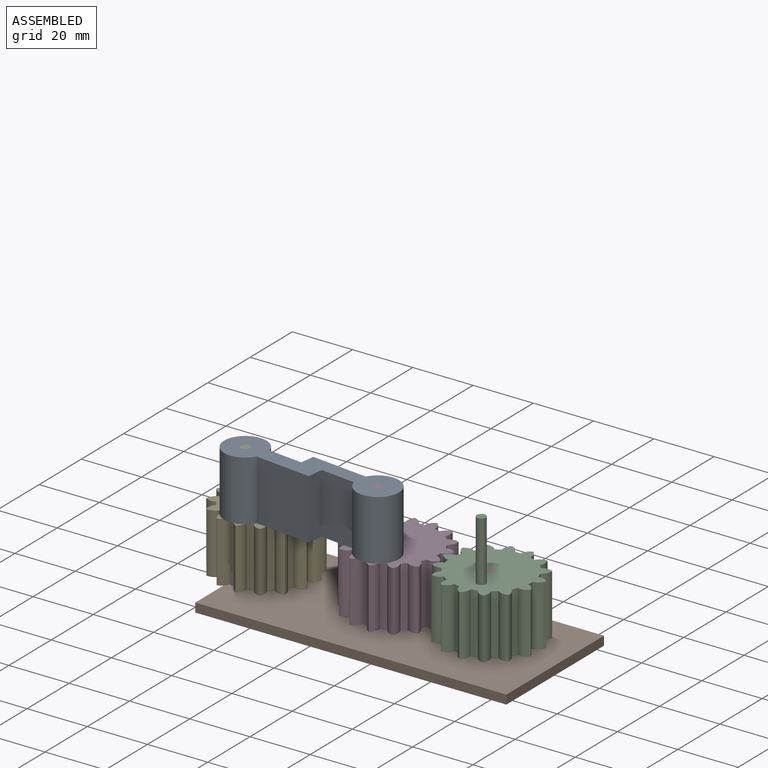
[diagram: assembled view]
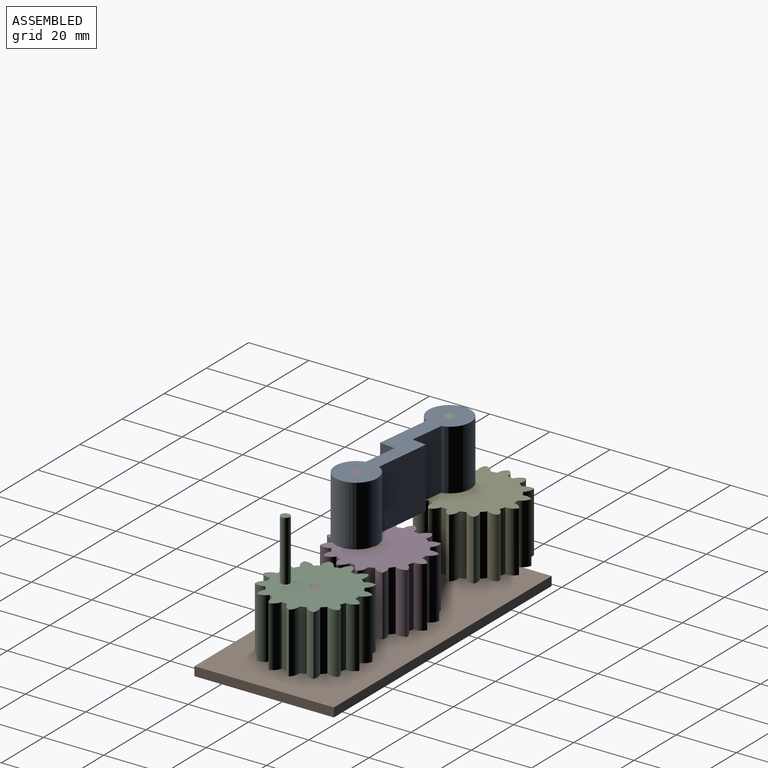
[diagram: assembled view, second angle]
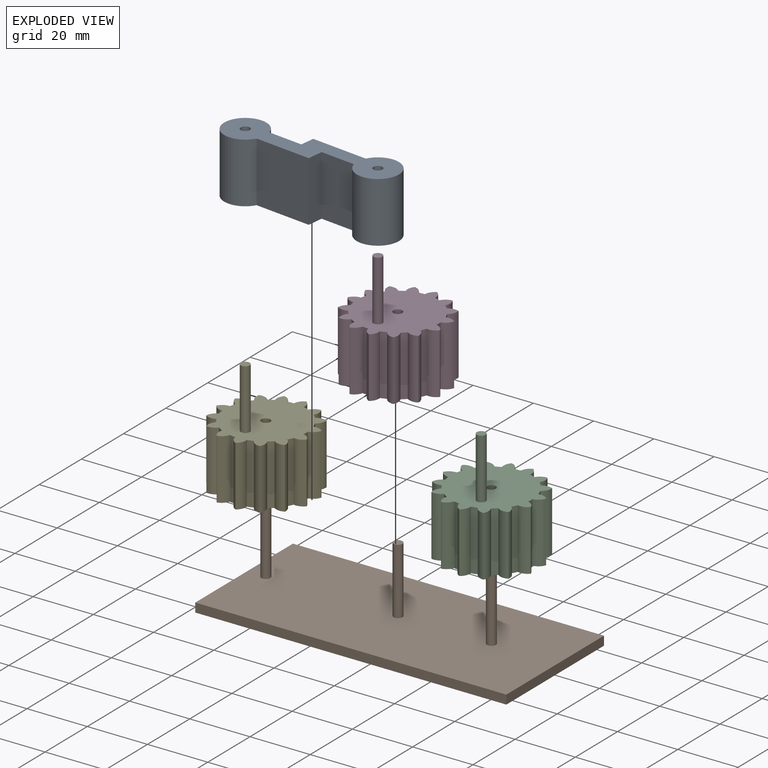
[diagram: exploded view]
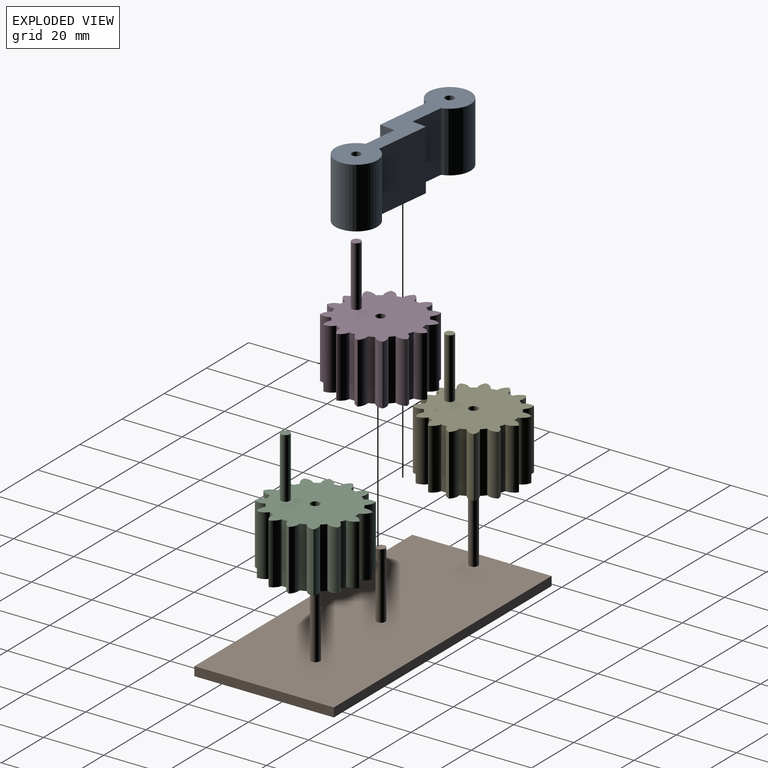
[diagram: exploded view, second angle]
ASSEMBLY  parts=5 mates=5
PART A: 12 faces, bbox 57.8x19.1x20 mm
  f0: plane 20x11.77mm, normal (0,-1,0), area 235.3mm2, adj f1,f8,f10,f11
  f1: cylinder r=7mm len=20mm, axis (0,0,-1), area 780.8mm2, adj f0,f2,f10,f11
  f2: plane 20x19.15mm, normal (0,1,0), area 383mm2, adj f1,f3,f10,f11
  f3: plane 20x4.84mm, normal (-1,0,0), area 96.8mm2, adj f2,f4,f10,f11
  f4: plane 20x11.6mm, normal (0,1,0), area 232mm2, adj f3,f5,f10,f11
  f5: cylinder r=7mm len=20mm, axis (0,0,-1), area 771.6mm2, adj f4,f6,f10,f11
  f6: plane 20x18.98mm, normal (0,-1,0), area 379.6mm2, adj f5,f8,f10,f11
  f7: cylinder r=1.5mm len=20mm, axis (0,0,-1), area 188.5mm2, adj f10,f11
  f8: plane 20x5.27mm, normal (1,0,0), area 105.4mm2, adj f0,f6,f10,f11
  f9: cylinder r=1.5mm len=20mm, axis (0,0,-1), area 188.5mm2, adj f10,f11
  f10: plane 57.8x19.05mm, normal (0,0,1), area 483.2mm2, adj f0,f1,f2,f3,f4,f5,f6,f7
  f11: plane 57.8x19.05mm, normal (0,0,-1), area 483.2mm2, adj f0,f1,f2,f3,f4,f5,f6,f7
PART B: 12 faces, bbox 103.3x46.3x25 mm
  f0: plane 103.26x3mm, normal (0,1,0), area 309.8mm2, adj f1,f3,f4,f5
  f1: plane 46.28x3mm, normal (-1,0,0), area 138.8mm2, adj f0,f2,f4,f5
  f2: plane 103.26x3mm, normal (0,-1,0), area 309.8mm2, adj f1,f3,f4,f5
  f3: plane 46.28x3mm, normal (1,0,0), area 138.8mm2, adj f0,f2,f4,f5
  f4: plane 103.26x46.28mm, normal (0,0,1), area 4757.5mm2, adj f0,f1,f2,f3,f6,f8,f10
  f5: plane 103.26x46.28mm, normal (0,0,-1), area 4778.8mm2, adj f0,f1,f2,f3
  f6: cylinder r=1.5mm len=22mm, axis (0,0,-1), area 207.3mm2, adj f4,f7
  f7: plane 3x3mm, normal (0,0,1), area 7.1mm2, adj f6
  f8: cylinder r=1.5mm len=22mm, axis (0,0,-1), area 207.3mm2, adj f4,f9
  f9: plane 3x3mm, normal (0,0,1), area 7.1mm2, adj f8
  f10: cylinder r=1.5mm len=22mm, axis (0,0,-1), area 207.3mm2, adj f4,f11
  f11: plane 3x3mm, normal (0,0,1), area 7.1mm2, adj f10
PART C: 50 faces, bbox 32.8x32.9x40 mm
  f0: cylinder r=13.5mm len=20mm, axis (0,0,1), area 40.4mm2, adj f14,f16,f45,f46
  f1: cylinder r=13.5mm len=20mm, axis (0,0,1), area 40.4mm2, adj f14,f16,f43,f44
  f2: cylinder r=13.5mm len=20mm, axis (0,0,1), area 40.4mm2, adj f14,f16,f41,f42
  f3: cylinder r=13.5mm len=20mm, axis (0,0,1), area 40.4mm2, adj f14,f16,f39,f40
  f4: cylinder r=13.5mm len=20mm, axis (0,0,1), area 40.4mm2, adj f14,f16,f37,f38
  f5: cylinder r=13.5mm len=20mm, axis (0,0,1), area 40.4mm2, adj f14,f16,f35,f36
  f6: cylinder r=13.5mm len=20mm, axis (0,0,1), area 40.4mm2, adj f14,f16,f33,f34
  f7: cylinder r=13.5mm len=20mm, axis (0,0,1), area 40.4mm2, adj f14,f16,f31,f32
  f8: cylinder r=13.5mm len=20mm, axis (0,0,1), area 40.4mm2, adj f14,f16,f29,f30
  f9: cylinder r=13.5mm len=20mm, axis (0,0,1), area 40.4mm2, adj f14,f16,f27,f28
  f10: cylinder r=13.5mm len=20mm, axis (0,0,1), area 40.4mm2, adj f14,f16,f25,f26
  f11: cylinder r=13.5mm len=20mm, axis (0,0,1), area 40.4mm2, adj f14,f16,f23,f24
  f12: cylinder r=13.5mm len=20mm, axis (0,0,1), area 40.4mm2, adj f14,f16,f21,f22
  f13: cylinder r=13.5mm len=20mm, axis (0,0,1), area 40.4mm2, adj f14,f16,f19,f20
  f14: plane 32.89x32.84mm, normal (0,0,1), area 677.3mm2, adj f0,f1,f2,f3,f4,f5,f6,f7
  f15: cylinder r=13.5mm len=20mm, axis (0,0,1), area 40.4mm2, adj f14,f16,f18,f47
  f16: plane 32.89x32.84mm, normal (0,0,-1), area 684.4mm2, adj f0,f1,f2,f3,f4,f5,f6,f7
  f17: cylinder r=1.5mm len=20mm, axis (0,0,1), area 188.5mm2, adj f14,f16
  f18: cylinder r=3.54mm len=20mm, axis (0,0,1), area 78.2mm2, adj f14,f15,f16,f19
  f19: cylinder r=3.63mm len=20mm, axis (0,0,1), area 75.1mm2, adj f13,f14,f16,f18
  f20: cylinder r=3.54mm len=20mm, axis (0,0,1), area 78.2mm2, adj f13,f14,f16,f21
  f21: cylinder r=3.63mm len=20mm, axis (0,0,1), area 75.1mm2, adj f12,f14,f16,f20
  f22: cylinder r=3.54mm len=20mm, axis (0,0,1), area 78.2mm2, adj f12,f14,f16,f23
  f23: cylinder r=3.63mm len=20mm, axis (0,0,1), area 75.1mm2, adj f11,f14,f16,f22
  f24: cylinder r=3.54mm len=20mm, axis (0,0,1), area 78.2mm2, adj f11,f14,f16,f25
  f25: cylinder r=3.63mm len=20mm, axis (0,0,1), area 75.1mm2, adj f10,f14,f16,f24
  f26: cylinder r=3.54mm len=20mm, axis (0,0,1), area 78.2mm2, adj f10,f14,f16,f27
  f27: cylinder r=3.63mm len=20mm, axis (0,0,1), area 75.1mm2, adj f9,f14,f16,f26
  f28: cylinder r=3.54mm len=20mm, axis (0,0,1), area 78.2mm2, adj f9,f14,f16,f29
  f29: cylinder r=3.63mm len=20mm, axis (0,0,1), area 75.1mm2, adj f8,f14,f16,f28
  f30: cylinder r=3.54mm len=20mm, axis (0,0,1), area 78.2mm2, adj f8,f14,f16,f31
  f31: cylinder r=3.63mm len=20mm, axis (0,0,1), area 75.1mm2, adj f7,f14,f16,f30
  f32: cylinder r=3.54mm len=20mm, axis (0,0,1), area 78.2mm2, adj f7,f14,f16,f33
  f33: cylinder r=3.63mm len=20mm, axis (0,0,1), area 75.1mm2, adj f6,f14,f16,f32
  f34: cylinder r=3.54mm len=20mm, axis (0,0,1), area 78.2mm2, adj f6,f14,f16,f35
  f35: cylinder r=3.63mm len=20mm, axis (0,0,1), area 75.1mm2, adj f5,f14,f16,f34
  f36: cylinder r=3.54mm len=20mm, axis (0,0,1), area 78.2mm2, adj f5,f14,f16,f37
  f37: cylinder r=3.63mm len=20mm, axis (0,0,1), area 75.1mm2, adj f4,f14,f16,f36
  f38: cylinder r=3.54mm len=20mm, axis (0,0,1), area 78.2mm2, adj f4,f14,f16,f39
  f39: cylinder r=3.63mm len=20mm, axis (0,0,1), area 75.1mm2, adj f3,f14,f16,f38
  f40: cylinder r=3.54mm len=20mm, axis (0,0,1), area 78.2mm2, adj f3,f14,f16,f41
  f41: cylinder r=3.63mm len=20mm, axis (0,0,1), area 75.1mm2, adj f2,f14,f16,f40
  f42: cylinder r=3.54mm len=20mm, axis (0,0,1), area 78.2mm2, adj f2,f14,f16,f43
  f43: cylinder r=3.63mm len=20mm, axis (0,0,1), area 75.1mm2, adj f1,f14,f16,f42
  f44: cylinder r=3.54mm len=20mm, axis (0,0,1), area 78.2mm2, adj f1,f14,f16,f45
  f45: cylinder r=3.63mm len=20mm, axis (0,0,1), area 75.1mm2, adj f0,f14,f16,f44
  f46: cylinder r=3.54mm len=20mm, axis (0,0,1), area 78.2mm2, adj f0,f14,f16,f47
  f47: cylinder r=3.63mm len=20mm, axis (0,0,1), area 75.1mm2, adj f14,f15,f16,f46
  f48: cylinder r=1.5mm len=20mm, axis (0,0,-1), area 188.5mm2, adj f14,f49
  f49: plane 3x3mm, normal (0,0,1), area 7.1mm2, adj f48
PART D: same geometry as C
PART E: same geometry as C
PLACE A rot(axis=(0,0,-1),6.7deg) t=(-28.52,-12.98,10.92)mm
PLACE B t=(-8.55,6.8,-14.08)mm fixed
PLACE C rot(axis=(0,0,1),55.3deg) t=(21.23,-8.16,0.92)mm
PLACE D rot(axis=(0,0,1),34.7deg) t=(-11.71,-6.26,0.92)mm
PLACE E rot(axis=(0,0,1),33.2deg) t=(-55.68,-6.01,0.92)mm
MATE revolute E.f0 <-> B.f10  axis (0,0,1) through (-49.41,-1.9,10.92)mm
MATE revolute D.f14 <-> B.f6  axis (0,0,1) through (-5.53,-1.9,10.92)mm
MATE revolute C.f14 <-> B.f8  axis (0,0,1) through (25.47,-1.9,10.92)mm
MATE revolute A.f1 <-> D.f48  axis (0,0,1) through (-6.18,-10.52,30.92)mm
MATE revolute A.f5 <-> E.f48  axis (0,0,1) through (-50.27,-10.41,30.92)mm
